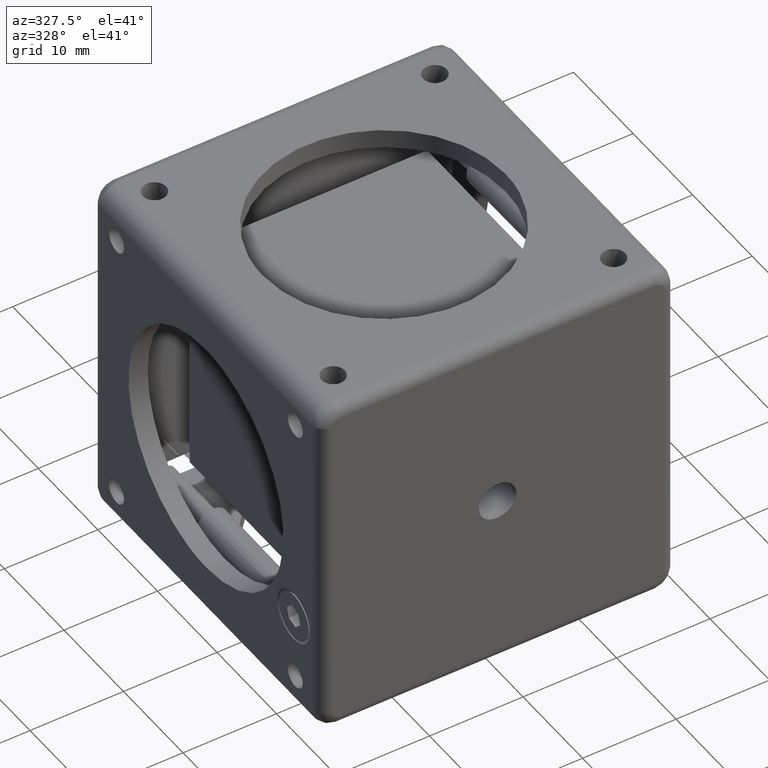
[diagram: clean part render]
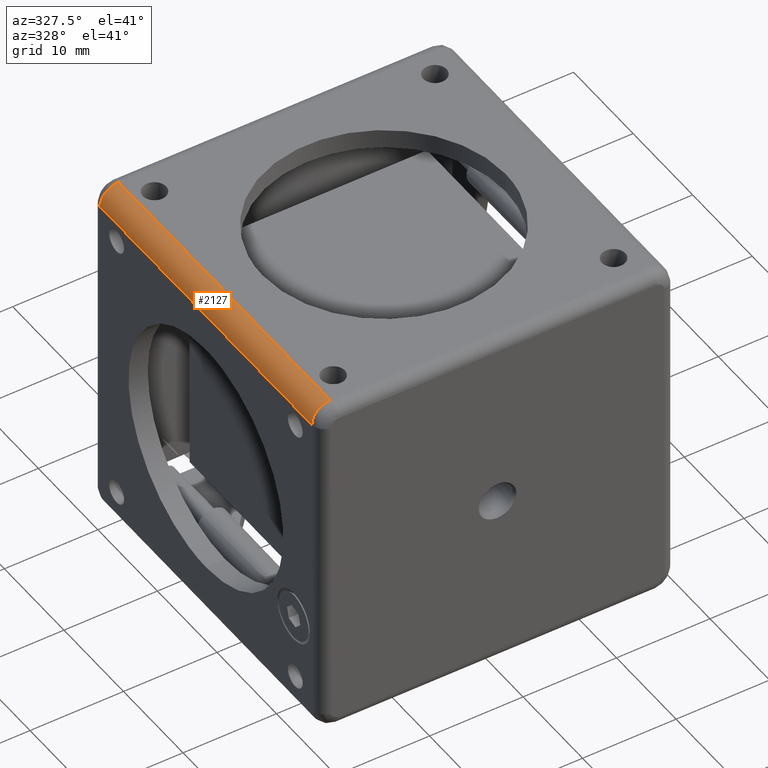
[diagram: same view with one face highlighted and labeled with its STEP entity id]
A machine part, auxiliary view. The second image highlights one B-rep face of the part: STEP entity #2127.
In plain terms, the highlighted face is a freeform B-spline surface patch.
Its self-contained STEP definition (entity closure, byte-faithful):
#43 = CARTESIAN_POINT ( 'NONE',  ( -348.9007940824679963, -4.194280474578479634, 55.14999999999999858 ) ) ;
#343 = CARTESIAN_POINT ( 'NONE',  ( -346.9007940824679963, -4.194280474578479634, 57.14999999999999858 ) ) ;
#466 = CARTESIAN_POINT ( 'NONE',  ( -348.9007940824679963, -4.194280474578479634, 55.14999999999999858 ) ) ;
#566 = VERTEX_POINT ( 'NONE', #5648 ) ;
#650 = VERTEX_POINT ( 'NONE', #7311 ) ;
#817 = CARTESIAN_POINT ( 'NONE',  ( -348.9007940824679963, 31.38571952542149646, 55.14999999999999858 ) ) ;
#989 =( BOUNDED_CURVE ( )  B_SPLINE_CURVE ( 3, ( #1198, #6154, #8239, #343 ),
 .UNSPECIFIED., .F., .F. ) 
 B_SPLINE_CURVE_WITH_KNOTS ( ( 4, 4 ),
 ( 0.000000000000000000, 1.000000000000000000 ),
 .UNSPECIFIED. ) 
 CURVE ( )  GEOMETRIC_REPRESENTATION_ITEM ( )  RATIONAL_B_SPLINE_CURVE ( ( 1.000000000000000000, 0.8047378541243649375, 0.8047378541243649375, 1.000000000000000000 ) ) 
 REPRESENTATION_ITEM ( '' )  );
#1128 = ORIENTED_EDGE ( 'NONE', *, *, #5093, .T. ) ;
#1198 = CARTESIAN_POINT ( 'NONE',  ( -348.9007940824679963, -4.194280474578479634, 55.14999999999999858 ) ) ;
#1230 = CARTESIAN_POINT ( 'NONE',  ( -348.9007940824683374, 31.38571952542151777, 56.32157287525419775 ) ) ;
#1368 = CARTESIAN_POINT ( 'NONE',  ( -346.9007940824679963, 31.38571952542149646, 57.14999999999999858 ) ) ;
#1644 =( BOUNDED_SURFACE ( )  B_SPLINE_SURFACE ( 3, 1, ( 
 ( #466, #4054 ),
 ( #8459, #1230 ),
 ( #5531, #8507 ),
 ( #9108, #1368 ) ),
 .UNSPECIFIED., .F., .F., .F. ) 
 B_SPLINE_SURFACE_WITH_KNOTS ( ( 4, 4 ),
 ( 2, 2 ),
 ( 0.000000000000000000, 1.000000000000000000 ),
 ( 0.000000000000000000, 1.000000000000000000 ),
 .UNSPECIFIED. ) 
 GEOMETRIC_REPRESENTATION_ITEM ( )  RATIONAL_B_SPLINE_SURFACE ( (
 ( 1.000000000000000000, 1.000000000000000000),
 ( 0.8047378541243649375, 0.8047378541243649375),
 ( 0.8047378541243649375, 0.8047378541243649375),
 ( 1.000000000000000000, 1.000000000000000000) ) ) 
 REPRESENTATION_ITEM ( '' )  SURFACE ( )  );
#1858 = EDGE_CURVE ( 'NONE', #4515, #8166, #989, .T. ) ;
#2127 = ADVANCED_FACE ( 'NONE', ( #8412 ), #1644, .T. ) ;
#2294 = EDGE_CURVE ( 'NONE', #8166, #566, #6542, .T. ) ;
#2851 = CARTESIAN_POINT ( 'NONE',  ( -348.0723669577223518, 31.38571952542151777, 57.15000000000042490 ) ) ;
#2921 =( BOUNDED_CURVE ( )  B_SPLINE_CURVE ( 3, ( #9071, #2851, #6990, #5595 ),
 .UNSPECIFIED., .F., .F. ) 
 B_SPLINE_CURVE_WITH_KNOTS ( ( 4, 4 ),
 ( 0.000000000000000000, 1.000000000000000000 ),
 .UNSPECIFIED. ) 
 CURVE ( )  GEOMETRIC_REPRESENTATION_ITEM ( )  RATIONAL_B_SPLINE_CURVE ( ( 1.000000000000000000, 0.8047378541243649375, 0.8047378541243649375, 1.000000000000000000 ) ) 
 REPRESENTATION_ITEM ( '' )  );
#3512 = B_SPLINE_CURVE_WITH_KNOTS ( 'NONE', 1,
 ( #817, #8573 ),
 .UNSPECIFIED., .F., .F.,
 ( 2, 2 ),
 ( 0.000000000000000000, 1.000000000000000000 ),
 .UNSPECIFIED. ) ;
#4054 = CARTESIAN_POINT ( 'NONE',  ( -348.9007940824679963, 31.38571952542149646, 55.14999999999999858 ) ) ;
#4515 = VERTEX_POINT ( 'NONE', #43 ) ;
#4914 = ORIENTED_EDGE ( 'NONE', *, *, #1858, .T. ) ;
#5093 = EDGE_CURVE ( 'NONE', #650, #4515, #3512, .T. ) ;
#5531 = CARTESIAN_POINT ( 'NONE',  ( -348.0723669577223518, -4.194280474578481410, 57.15000000000042490 ) ) ;
#5595 = CARTESIAN_POINT ( 'NONE',  ( -348.9007940824679963, 31.38571952542149646, 55.14999999999999858 ) ) ;
#5625 = EDGE_CURVE ( 'NONE', #566, #650, #2921, .T. ) ;
#5648 = CARTESIAN_POINT ( 'NONE',  ( -346.9007940824679963, 31.38571952542149646, 57.14999999999999858 ) ) ;
#6154 = CARTESIAN_POINT ( 'NONE',  ( -348.9007940824683374, -4.194280474578481410, 56.32157287525419775 ) ) ;
#6384 = CARTESIAN_POINT ( 'NONE',  ( -346.9007940824679963, -4.194280474578479634, 57.14999999999999858 ) ) ;
#6511 = CARTESIAN_POINT ( 'NONE',  ( -346.9007940824679963, 31.38571952542149646, 57.14999999999999858 ) ) ;
#6542 = B_SPLINE_CURVE_WITH_KNOTS ( 'NONE', 1,
 ( #7204, #6511 ),
 .UNSPECIFIED., .F., .F.,
 ( 2, 2 ),
 ( 0.000000000000000000, 1.000000000000000000 ),
 .UNSPECIFIED. ) ;
#6990 = CARTESIAN_POINT ( 'NONE',  ( -348.9007940824683374, 31.38571952542151777, 56.32157287525419775 ) ) ;
#7204 = CARTESIAN_POINT ( 'NONE',  ( -346.9007940824679963, -4.194280474578479634, 57.14999999999999858 ) ) ;
#7311 = CARTESIAN_POINT ( 'NONE',  ( -348.9007940824679963, 31.38571952542149646, 55.14999999999999858 ) ) ;
#7332 = ORIENTED_EDGE ( 'NONE', *, *, #2294, .T. ) ;
#8131 = ORIENTED_EDGE ( 'NONE', *, *, #5625, .T. ) ;
#8166 = VERTEX_POINT ( 'NONE', #6384 ) ;
#8239 = CARTESIAN_POINT ( 'NONE',  ( -348.0723669577223518, -4.194280474578481410, 57.15000000000042490 ) ) ;
#8412 = FACE_OUTER_BOUND ( 'NONE', #8672, .T. ) ;
#8459 = CARTESIAN_POINT ( 'NONE',  ( -348.9007940824683374, -4.194280474578481410, 56.32157287525419775 ) ) ;
#8507 = CARTESIAN_POINT ( 'NONE',  ( -348.0723669577223518, 31.38571952542151777, 57.15000000000042490 ) ) ;
#8573 = CARTESIAN_POINT ( 'NONE',  ( -348.9007940824679963, -4.194280474578479634, 55.14999999999999858 ) ) ;
#8672 = EDGE_LOOP ( 'NONE', ( #1128, #4914, #7332, #8131 ) ) ;
#9071 = CARTESIAN_POINT ( 'NONE',  ( -346.9007940824679963, 31.38571952542149646, 57.14999999999999858 ) ) ;
#9108 = CARTESIAN_POINT ( 'NONE',  ( -346.9007940824679963, -4.194280474578479634, 57.14999999999999858 ) ) ;